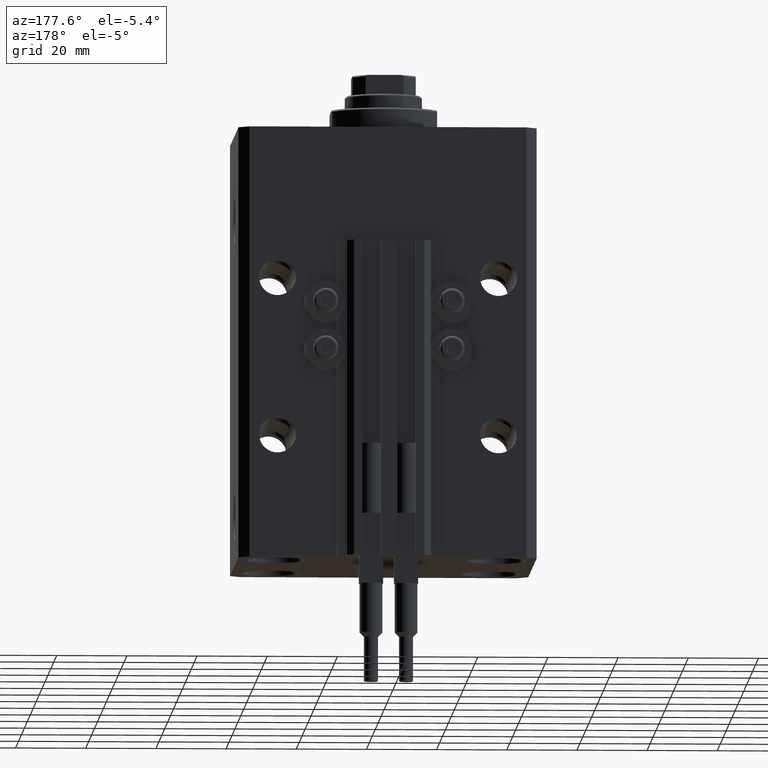
[diagram: clean part render]
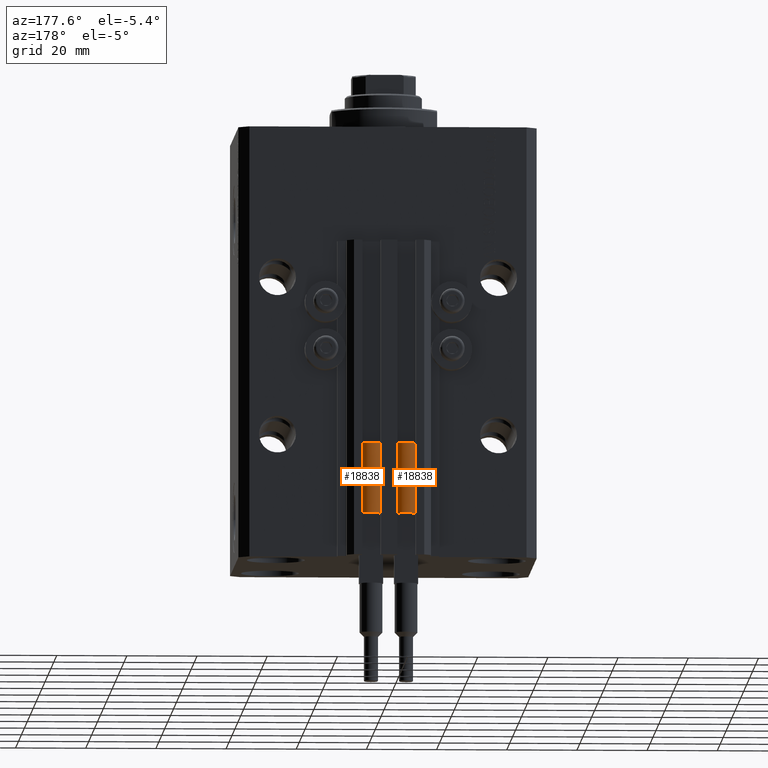
[diagram: same view with one multi-face feature highlighted, each face labeled with its STEP entity id]
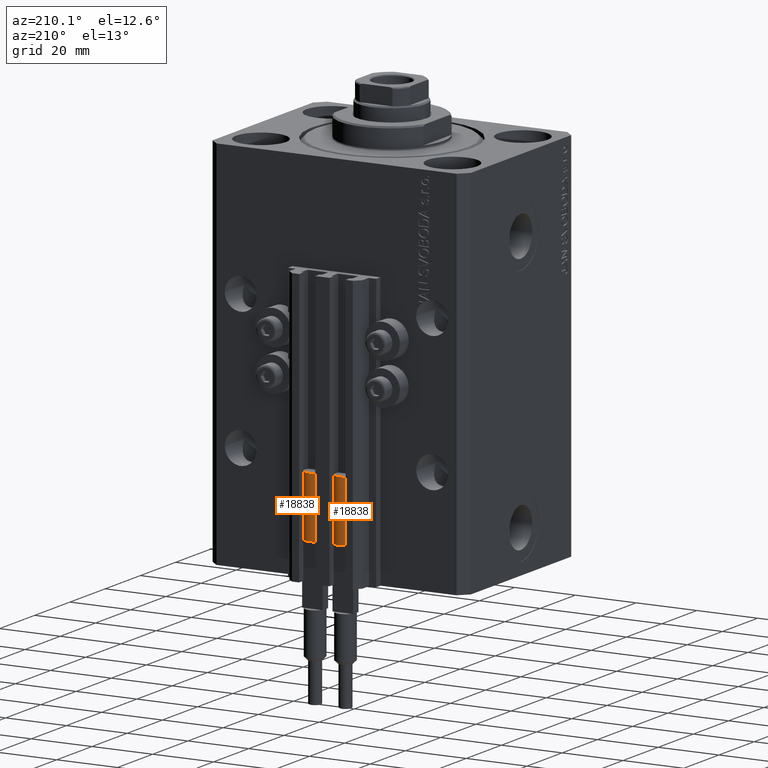
[diagram: same view with one multi-face feature highlighted, each face labeled with its STEP entity id]
A machine part, auxiliary view. The highlighted faces form ONE feature: a constant-radius fillet chain: 2 tangent blend faces with common blend radius 3.4 mm. The faces share edges in the B-rep.
A second angle (auxiliary view) of the same feature is appended — it is thin or edge-on in the first view.
Their STEP definitions:
[1] entity #18838 (Cylinder):
#109 = DIRECTION ( 'NONE',  ( 1.000000000000000000, 0.000000000000000000, 0.000000000000000000 ) ) ;
#585 = ORIENTED_EDGE ( 'NONE', *, *, #7420, .T. ) ;
#661 = CIRCLE ( 'NONE', #38177, 3.400000000000000355 ) ;
#1264 = CARTESIAN_POINT ( 'NONE',  ( 0.000000000000000000, 0.000000000000000000, 20.00000000000000000 ) ) ;
#2557 = CIRCLE ( 'NONE', #42485, 3.400000000000000355 ) ;
#5056 = CARTESIAN_POINT ( 'NONE',  ( -3.400000000000000355, 0.000000000000000000, 20.00000000000000000 ) ) ;
#5677 = DIRECTION ( 'NONE',  ( -0.000000000000000000, -0.000000000000000000, -1.000000000000000000 ) ) ;
#5792 = CARTESIAN_POINT ( 'NONE',  ( 3.400000000000000355, 4.163799117101001052E-16, 0.000000000000000000 ) ) ;
#6052 = LINE ( 'NONE', #36545, #46943 ) ;
#6176 = CYLINDRICAL_SURFACE ( 'NONE', #32853, 3.400000000000000355 ) ;
#6580 = ORIENTED_EDGE ( 'NONE', *, *, #11842, .F. ) ;
#7138 = DIRECTION ( 'NONE',  ( 0.000000000000000000, 0.000000000000000000, 1.000000000000000000 ) ) ;
#7275 = VERTEX_POINT ( 'NONE', #34767 ) ;
#7420 = EDGE_CURVE ( 'NONE', #41511, #34044, #17411, .T. ) ;
#8428 = CARTESIAN_POINT ( 'NONE',  ( -3.051229260478471428, 1.500000000000000000, 20.00000000000000000 ) ) ;
#9763 = DIRECTION ( 'NONE',  ( 1.000000000000000000, 0.000000000000000000, 0.000000000000000000 ) ) ;
#10185 = DIRECTION ( 'NONE',  ( -1.000000000000000000, 0.000000000000000000, 0.000000000000000000 ) ) ;
#10468 = ORIENTED_EDGE ( 'NONE', *, *, #11718, .T. ) ;
#10820 = CARTESIAN_POINT ( 'NONE',  ( -3.400000000000000355, 0.000000000000000000, 0.000000000000000000 ) ) ;
#10952 = CARTESIAN_POINT ( 'NONE',  ( -3.399999999999999467, -4.915049848600952119E-16, 20.00000000000000000 ) ) ;
#11547 = EDGE_CURVE ( 'NONE', #49510, #34044, #27804, .T. ) ;
#11718 = EDGE_CURVE ( 'NONE', #39408, #41511, #6052, .T. ) ;
#11842 = EDGE_CURVE ( 'NONE', #39408, #7275, #661, .T. ) ;
#15756 = DIRECTION ( 'NONE',  ( 0.000000000000000000, 0.000000000000000000, 1.000000000000000000 ) ) ;
#17411 = CIRCLE ( 'NONE', #29409, 3.400000000000000355 ) ;
#17412 = CARTESIAN_POINT ( 'NONE',  ( 0.000000000000000000, 0.000000000000000000, 20.00000000000000000 ) ) ;
#18323 = ORIENTED_EDGE ( 'NONE', *, *, #19634, .F. ) ;
#18838 = ADVANCED_FACE ( 'NONE', ( #25180 ), #6176, .T. ) ;
#19597 = CARTESIAN_POINT ( 'NONE',  ( 3.400000000000000355, 0.000000000000000000, 20.00000000000000000 ) ) ;
#19634 = EDGE_CURVE ( 'NONE', #26185, #49510, #2557, .T. ) ;
#19970 = ORIENTED_EDGE ( 'NONE', *, *, #11547, .F. ) ;
#25180 = FACE_OUTER_BOUND ( 'NONE', #44334, .T. ) ;
#25425 = CARTESIAN_POINT ( 'NONE',  ( 0.000000000000000000, 0.000000000000000000, 20.00000000000000000 ) ) ;
#25498 = DIRECTION ( 'NONE',  ( 0.000000000000000000, 0.000000000000000000, 1.000000000000000000 ) ) ;
#26185 = VERTEX_POINT ( 'NONE', #8428 ) ;
#27804 = LINE ( 'NONE', #5056, #36604 ) ;
#28412 = DIRECTION ( 'NONE',  ( 1.000000000000000000, 0.000000000000000000, 0.000000000000000000 ) ) ;
#28541 = CIRCLE ( 'NONE', #46874, 3.400000000000000355 ) ;
#29409 = AXIS2_PLACEMENT_3D ( 'NONE', #41236, #25498, #9763 ) ;
#32853 = AXIS2_PLACEMENT_3D ( 'NONE', #25425, #5677, #10185 ) ;
#34033 = CARTESIAN_POINT ( 'NONE',  ( 0.000000000000000000, 0.000000000000000000, 20.00000000000000000 ) ) ;
#34044 = VERTEX_POINT ( 'NONE', #10820 ) ;
#34767 = CARTESIAN_POINT ( 'NONE',  ( 3.051229260478471428, 1.500000000000000000, 20.00000000000000000 ) ) ;
#36158 = DIRECTION ( 'NONE',  ( 0.000000000000000000, 0.000000000000000000, 1.000000000000000000 ) ) ;
#36545 = CARTESIAN_POINT ( 'NONE',  ( 3.400000000000000355, 4.163799117101001052E-16, 20.00000000000000000 ) ) ;
#36604 = VECTOR ( 'NONE', #47304, 1000.000000000000000 ) ;
#38177 = AXIS2_PLACEMENT_3D ( 'NONE', #34033, #15756, #49059 ) ;
#39408 = VERTEX_POINT ( 'NONE', #19597 ) ;
#40067 = ORIENTED_EDGE ( 'NONE', *, *, #41282, .F. ) ;
#41236 = CARTESIAN_POINT ( 'NONE',  ( 0.000000000000000000, 0.000000000000000000, 0.000000000000000000 ) ) ;
#41282 = EDGE_CURVE ( 'NONE', #7275, #26185, #28541, .T. ) ;
#41511 = VERTEX_POINT ( 'NONE', #5792 ) ;
#42485 = AXIS2_PLACEMENT_3D ( 'NONE', #1264, #7138, #109 ) ;
#44334 = EDGE_LOOP ( 'NONE', ( #6580, #10468, #585, #19970, #18323, #40067 ) ) ;
#46874 = AXIS2_PLACEMENT_3D ( 'NONE', #17412, #36158, #28412 ) ;
#46943 = VECTOR ( 'NONE', #47804, 1000.000000000000000 ) ;
#47304 = DIRECTION ( 'NONE',  ( -0.000000000000000000, -0.000000000000000000, -1.000000000000000000 ) ) ;
#47804 = DIRECTION ( 'NONE',  ( -0.000000000000000000, -0.000000000000000000, -1.000000000000000000 ) ) ;
#49059 = DIRECTION ( 'NONE',  ( 1.000000000000000000, 0.000000000000000000, 0.000000000000000000 ) ) ;
#49510 = VERTEX_POINT ( 'NONE', #10952 ) ;
[2] entity #18838 (Cylinder):
#109 = DIRECTION ( 'NONE',  ( 1.000000000000000000, 0.000000000000000000, 0.000000000000000000 ) ) ;
#585 = ORIENTED_EDGE ( 'NONE', *, *, #7420, .T. ) ;
#661 = CIRCLE ( 'NONE', #38177, 3.400000000000000355 ) ;
#1264 = CARTESIAN_POINT ( 'NONE',  ( 0.000000000000000000, 0.000000000000000000, 20.00000000000000000 ) ) ;
#2557 = CIRCLE ( 'NONE', #42485, 3.400000000000000355 ) ;
#5056 = CARTESIAN_POINT ( 'NONE',  ( -3.400000000000000355, 0.000000000000000000, 20.00000000000000000 ) ) ;
#5677 = DIRECTION ( 'NONE',  ( -0.000000000000000000, -0.000000000000000000, -1.000000000000000000 ) ) ;
#5792 = CARTESIAN_POINT ( 'NONE',  ( 3.400000000000000355, 4.163799117101001052E-16, 0.000000000000000000 ) ) ;
#6052 = LINE ( 'NONE', #36545, #46943 ) ;
#6176 = CYLINDRICAL_SURFACE ( 'NONE', #32853, 3.400000000000000355 ) ;
#6580 = ORIENTED_EDGE ( 'NONE', *, *, #11842, .F. ) ;
#7138 = DIRECTION ( 'NONE',  ( 0.000000000000000000, 0.000000000000000000, 1.000000000000000000 ) ) ;
#7275 = VERTEX_POINT ( 'NONE', #34767 ) ;
#7420 = EDGE_CURVE ( 'NONE', #41511, #34044, #17411, .T. ) ;
#8428 = CARTESIAN_POINT ( 'NONE',  ( -3.051229260478471428, 1.500000000000000000, 20.00000000000000000 ) ) ;
#9763 = DIRECTION ( 'NONE',  ( 1.000000000000000000, 0.000000000000000000, 0.000000000000000000 ) ) ;
#10185 = DIRECTION ( 'NONE',  ( -1.000000000000000000, 0.000000000000000000, 0.000000000000000000 ) ) ;
#10468 = ORIENTED_EDGE ( 'NONE', *, *, #11718, .T. ) ;
#10820 = CARTESIAN_POINT ( 'NONE',  ( -3.400000000000000355, 0.000000000000000000, 0.000000000000000000 ) ) ;
#10952 = CARTESIAN_POINT ( 'NONE',  ( -3.399999999999999467, -4.915049848600952119E-16, 20.00000000000000000 ) ) ;
#11547 = EDGE_CURVE ( 'NONE', #49510, #34044, #27804, .T. ) ;
#11718 = EDGE_CURVE ( 'NONE', #39408, #41511, #6052, .T. ) ;
#11842 = EDGE_CURVE ( 'NONE', #39408, #7275, #661, .T. ) ;
#15756 = DIRECTION ( 'NONE',  ( 0.000000000000000000, 0.000000000000000000, 1.000000000000000000 ) ) ;
#17411 = CIRCLE ( 'NONE', #29409, 3.400000000000000355 ) ;
#17412 = CARTESIAN_POINT ( 'NONE',  ( 0.000000000000000000, 0.000000000000000000, 20.00000000000000000 ) ) ;
#18323 = ORIENTED_EDGE ( 'NONE', *, *, #19634, .F. ) ;
#18838 = ADVANCED_FACE ( 'NONE', ( #25180 ), #6176, .T. ) ;
#19597 = CARTESIAN_POINT ( 'NONE',  ( 3.400000000000000355, 0.000000000000000000, 20.00000000000000000 ) ) ;
#19634 = EDGE_CURVE ( 'NONE', #26185, #49510, #2557, .T. ) ;
#19970 = ORIENTED_EDGE ( 'NONE', *, *, #11547, .F. ) ;
#25180 = FACE_OUTER_BOUND ( 'NONE', #44334, .T. ) ;
#25425 = CARTESIAN_POINT ( 'NONE',  ( 0.000000000000000000, 0.000000000000000000, 20.00000000000000000 ) ) ;
#25498 = DIRECTION ( 'NONE',  ( 0.000000000000000000, 0.000000000000000000, 1.000000000000000000 ) ) ;
#26185 = VERTEX_POINT ( 'NONE', #8428 ) ;
#27804 = LINE ( 'NONE', #5056, #36604 ) ;
#28412 = DIRECTION ( 'NONE',  ( 1.000000000000000000, 0.000000000000000000, 0.000000000000000000 ) ) ;
#28541 = CIRCLE ( 'NONE', #46874, 3.400000000000000355 ) ;
#29409 = AXIS2_PLACEMENT_3D ( 'NONE', #41236, #25498, #9763 ) ;
#32853 = AXIS2_PLACEMENT_3D ( 'NONE', #25425, #5677, #10185 ) ;
#34033 = CARTESIAN_POINT ( 'NONE',  ( 0.000000000000000000, 0.000000000000000000, 20.00000000000000000 ) ) ;
#34044 = VERTEX_POINT ( 'NONE', #10820 ) ;
#34767 = CARTESIAN_POINT ( 'NONE',  ( 3.051229260478471428, 1.500000000000000000, 20.00000000000000000 ) ) ;
#36158 = DIRECTION ( 'NONE',  ( 0.000000000000000000, 0.000000000000000000, 1.000000000000000000 ) ) ;
#36545 = CARTESIAN_POINT ( 'NONE',  ( 3.400000000000000355, 4.163799117101001052E-16, 20.00000000000000000 ) ) ;
#36604 = VECTOR ( 'NONE', #47304, 1000.000000000000000 ) ;
#38177 = AXIS2_PLACEMENT_3D ( 'NONE', #34033, #15756, #49059 ) ;
#39408 = VERTEX_POINT ( 'NONE', #19597 ) ;
#40067 = ORIENTED_EDGE ( 'NONE', *, *, #41282, .F. ) ;
#41236 = CARTESIAN_POINT ( 'NONE',  ( 0.000000000000000000, 0.000000000000000000, 0.000000000000000000 ) ) ;
#41282 = EDGE_CURVE ( 'NONE', #7275, #26185, #28541, .T. ) ;
#41511 = VERTEX_POINT ( 'NONE', #5792 ) ;
#42485 = AXIS2_PLACEMENT_3D ( 'NONE', #1264, #7138, #109 ) ;
#44334 = EDGE_LOOP ( 'NONE', ( #6580, #10468, #585, #19970, #18323, #40067 ) ) ;
#46874 = AXIS2_PLACEMENT_3D ( 'NONE', #17412, #36158, #28412 ) ;
#46943 = VECTOR ( 'NONE', #47804, 1000.000000000000000 ) ;
#47304 = DIRECTION ( 'NONE',  ( -0.000000000000000000, -0.000000000000000000, -1.000000000000000000 ) ) ;
#47804 = DIRECTION ( 'NONE',  ( -0.000000000000000000, -0.000000000000000000, -1.000000000000000000 ) ) ;
#49059 = DIRECTION ( 'NONE',  ( 1.000000000000000000, 0.000000000000000000, 0.000000000000000000 ) ) ;
#49510 = VERTEX_POINT ( 'NONE', #10952 ) ;